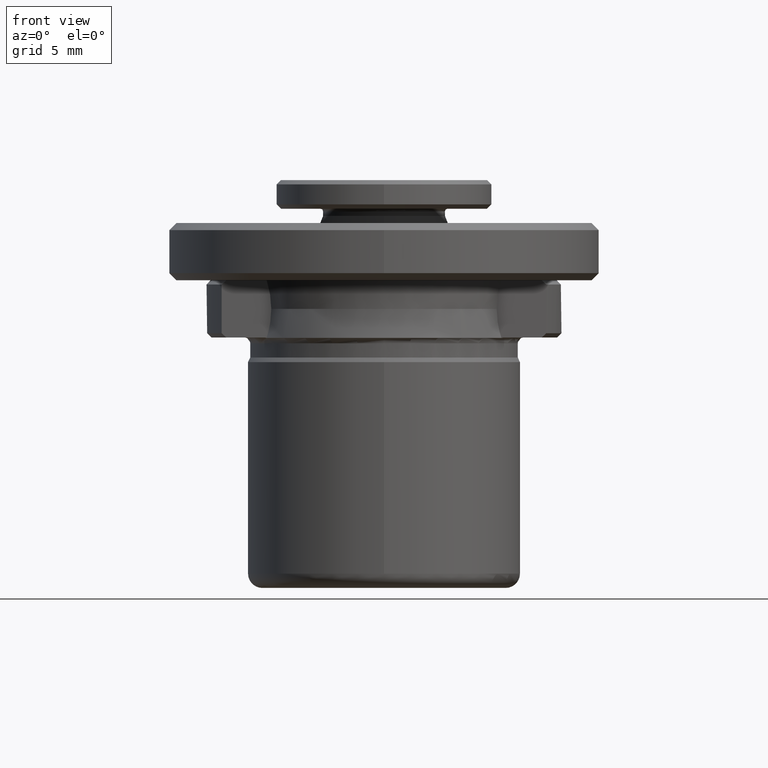
[diagram: clean part render]
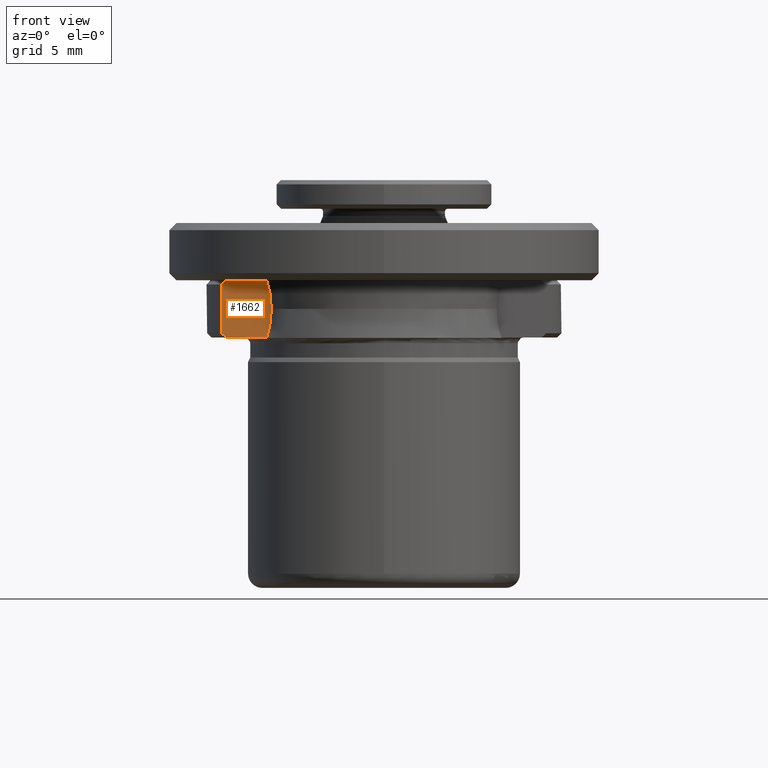
[diagram: same view with one face highlighted and labeled with its STEP entity id]
A machine part, front view. The second image highlights one B-rep face of the part: STEP entity #1662.
In plain terms, the highlighted planar face has unit normal (0, 1, 0).
Its self-contained STEP definition (entity closure, byte-faithful):
#11 = EDGE_CURVE ( 'NONE', #1105, #19, #956, .T. ) ;
#14 = CARTESIAN_POINT ( 'NONE',  ( -11.34724636212554000, -5.000000000000000000, 8.449999999886687300 ) ) ;
#19 = VERTEX_POINT ( 'NONE', #867 ) ;
#41 = VERTEX_POINT ( 'NONE', #1468 ) ;
#75 = ORIENTED_EDGE ( 'NONE', *, *, #1661, .F. ) ;
#86 = CARTESIAN_POINT ( 'NONE',  ( -8.196975813224247200, -5.000000000059219300, 8.750000000000000000 ) ) ;
#156 = DIRECTION ( 'NONE',  ( 0.0000000000000000000, 1.000000000000000000, 0.0000000000000000000 ) ) ;
#170 = VERTEX_POINT ( 'NONE', #86 ) ;
#252 = B_SPLINE_CURVE_WITH_KNOTS ( 'NONE', 3,
 ( #1170, #450, #301, #1505 ),
 .UNSPECIFIED., .F., .F.,
 ( 4, 4 ),
 ( 0.0000000000000000000, 0.002058707677936165400 ),
 .UNSPECIFIED. ) ;
#255 = CARTESIAN_POINT ( 'NONE',  ( -11.23782482238399400, -5.000000000000000000, 8.550131707046439500 ) ) ;
#295 = AXIS2_PLACEMENT_3D ( 'NONE', #2203, #156, #1362 ) ;
#301 = CARTESIAN_POINT ( 'NONE',  ( -7.990553860096998300, -5.000000000000001800, 5.378188955506334200 ) ) ;
#321 = VECTOR ( 'NONE', #484, 1000.000000000000000 ) ;
#324 = CARTESIAN_POINT ( 'NONE',  ( -8.370334521172623000, -4.999999999999999100, 4.749999999889213100 ) ) ;
#325 = VERTEX_POINT ( 'NONE', #1210 ) ;
#392 = VERTEX_POINT ( 'NONE', #2104 ) ;
#410 = ORIENTED_EDGE ( 'NONE', *, *, #720, .T. ) ;
#421 = CARTESIAN_POINT ( 'NONE',  ( -9.597103929000001100, -5.000000000000000000, 4.750000001368473300 ) ) ;
#450 = CARTESIAN_POINT ( 'NONE',  ( -7.877112415290540100, -5.000000000000000000, 6.061559036072796200 ) ) ;
#453 = CARTESIAN_POINT ( 'NONE',  ( -11.34724636212554000, -5.000000000000000000, 8.449999999886687300 ) ) ;
#484 = DIRECTION ( 'NONE',  ( -0.0000000000000000000, -0.0000000000000000000, 1.000000000000000000 ) ) ;
#558 = CARTESIAN_POINT ( 'NONE',  ( -11.34724636179920400, -5.000000000000000000, 5.049999999814682300 ) ) ;
#581 = ORIENTED_EDGE ( 'NONE', *, *, #1092, .T. ) ;
#599 = DIRECTION ( 'NONE',  ( -1.000000000000000000, 0.0000000000000000000, 0.0000000000000000000 ) ) ;
#620 = EDGE_CURVE ( 'NONE', #392, #170, #1928, .T. ) ;
#642 = CARTESIAN_POINT ( 'NONE',  ( -7.877112415001547200, -5.000000000000002700, 7.429349860856746100 ) ) ;
#673 = CARTESIAN_POINT ( 'NONE',  ( -11.34724636200000000, -5.000000000000000000, 6.725040224999999900 ) ) ;
#680 = CARTESIAN_POINT ( 'NONE',  ( -8.259008783760565500, -5.000000000000000000, 4.741517755019041900 ) ) ;
#682 = B_SPLINE_CURVE_WITH_KNOTS ( 'NONE', 3,
 ( #2136, #955, #255, #14 ),
 .UNSPECIFIED., .F., .F.,
 ( 4, 4 ),
 ( 7.195280659432918000E-014, 0.0004449661667406607600 ),
 .UNSPECIFIED. ) ;
#697 = CARTESIAN_POINT ( 'NONE',  ( -11.12828599720064900, -5.000000000000000000, 4.849864575904326200 ) ) ;
#720 = EDGE_CURVE ( 'NONE', #832, #170, #1808, .T. ) ;
#722 = EDGE_CURVE ( 'NONE', #832, #41, #252, .T. ) ;
#826 = CARTESIAN_POINT ( 'NONE',  ( -7.877112416672512800, -4.999999997048596400, 6.749999999319591400 ) ) ;
#832 = VERTEX_POINT ( 'NONE', #1721 ) ;
#867 = CARTESIAN_POINT ( 'NONE',  ( -11.01862060341406200, -4.999999999999999100, 4.750000000081855400 ) ) ;
#897 = B_SPLINE_CURVE_WITH_KNOTS ( 'NONE', 3,
 ( #324, #1701, #680, #1873 ),
 .UNSPECIFIED., .F., .F.,
 ( 4, 4 ),
 ( 0.0000000000000000000, 0.0001669516248611322700 ),
 .UNSPECIFIED. ) ;
#955 = CARTESIAN_POINT ( 'NONE',  ( -11.12828599722805100, -5.000000000000000000, 8.650135424071162800 ) ) ;
#956 = B_SPLINE_CURVE_WITH_KNOTS ( 'NONE', 3,
 ( #558, #1715, #697, #1888 ),
 .UNSPECIFIED., .F., .F.,
 ( 4, 4 ),
 ( 0.0000000000000000000, 0.0004449661657595341700 ),
 .UNSPECIFIED. ) ;
#967 = ORIENTED_EDGE ( 'NONE', *, *, #2002, .F. ) ;
#980 = DIRECTION ( 'NONE',  ( 1.000000000000000000, -0.0000000000000000000, -0.0000000000000000000 ) ) ;
#1006 = CARTESIAN_POINT ( 'NONE',  ( -7.987555906389316000, -5.000000000000000900, 8.103837295376664000 ) ) ;
#1030 = PLANE ( 'NONE',  #295 ) ;
#1034 = VECTOR ( 'NONE', #980, 1000.000000000000000 ) ;
#1081 = ORIENTED_EDGE ( 'NONE', *, *, #620, .F. ) ;
#1092 = EDGE_CURVE ( 'NONE', #392, #1290, #682, .T. ) ;
#1105 = VERTEX_POINT ( 'NONE', #1108 ) ;
#1108 = CARTESIAN_POINT ( 'NONE',  ( -11.34724636179920400, -5.000000000000000000, 5.049999999814682300 ) ) ;
#1170 = CARTESIAN_POINT ( 'NONE',  ( -7.877112416672512800, -4.999999997048596400, 6.749999999319591400 ) ) ;
#1176 = VECTOR ( 'NONE', #599, 1000.000000000000000 ) ;
#1210 = CARTESIAN_POINT ( 'NONE',  ( -8.370334521172623000, -4.999999999999999100, 4.749999999889213100 ) ) ;
#1253 = FACE_OUTER_BOUND ( 'NONE', #1741, .T. ) ;
#1290 = VERTEX_POINT ( 'NONE', #453 ) ;
#1305 = CARTESIAN_POINT ( 'NONE',  ( -9.597103929000001100, -5.000000000000000000, 8.750000000000000000 ) ) ;
#1362 = DIRECTION ( 'NONE',  ( 0.0000000000000000000, 0.0000000000000000000, -1.000000000000000000 ) ) ;
#1468 = CARTESIAN_POINT ( 'NONE',  ( -8.205382973924146800, -5.000000000000000900, 4.724235040594156700 ) ) ;
#1505 = CARTESIAN_POINT ( 'NONE',  ( -8.205382973924146800, -5.000000000000000900, 4.724235040594156700 ) ) ;
#1652 = ORIENTED_EDGE ( 'NONE', *, *, #1681, .T. ) ;
#1661 = EDGE_CURVE ( 'NONE', #1105, #1290, #2197, .T. ) ;
#1662 = ADVANCED_FACE ( 'NONE', ( #1253 ), #1030, .F. ) ;
#1681 = EDGE_CURVE ( 'NONE', #325, #41, #897, .T. ) ;
#1701 = CARTESIAN_POINT ( 'NONE',  ( -8.314009200589170600, -5.000000001018015900, 4.749999998703816400 ) ) ;
#1715 = CARTESIAN_POINT ( 'NONE',  ( -11.23782482204370200, -5.000000000000000000, 4.949868292643095900 ) ) ;
#1721 = CARTESIAN_POINT ( 'NONE',  ( -7.877112416672512800, -4.999999997048596400, 6.749999999319591400 ) ) ;
#1728 = ORIENTED_EDGE ( 'NONE', *, *, #11, .T. ) ;
#1741 = EDGE_LOOP ( 'NONE', ( #75, #1728, #967, #1652, #2220, #410, #1081, #581 ) ) ;
#1808 = B_SPLINE_CURVE_WITH_KNOTS ( 'NONE', 3,
 ( #826, #642, #1006, #2177 ),
 .UNSPECIFIED., .F., .F.,
 ( 4, 4 ),
 ( 3.469446951953614200E-018, 0.002031686963425014700 ),
 .UNSPECIFIED. ) ;
#1873 = CARTESIAN_POINT ( 'NONE',  ( -8.205382973924146800, -5.000000000000000900, 4.724235040594156700 ) ) ;
#1888 = CARTESIAN_POINT ( 'NONE',  ( -11.01862060341406200, -4.999999999999999100, 4.750000000081855400 ) ) ;
#1928 = LINE ( 'NONE', #1305, #1034 ) ;
#2002 = EDGE_CURVE ( 'NONE', #325, #19, #2118, .T. ) ;
#2104 = CARTESIAN_POINT ( 'NONE',  ( -11.01862060327093200, -4.999999999999999100, 8.750000000048482100 ) ) ;
#2118 = LINE ( 'NONE', #421, #1176 ) ;
#2136 = CARTESIAN_POINT ( 'NONE',  ( -11.01862060327093200, -4.999999999999999100, 8.750000000048482100 ) ) ;
#2177 = CARTESIAN_POINT ( 'NONE',  ( -8.196975813224247200, -5.000000000059219300, 8.750000000000000000 ) ) ;
#2197 = LINE ( 'NONE', #673, #321 ) ;
#2203 = CARTESIAN_POINT ( 'NONE',  ( -7.846961496000001400, -5.000000000000000000, 8.750000000000000000 ) ) ;
#2220 = ORIENTED_EDGE ( 'NONE', *, *, #722, .F. ) ;